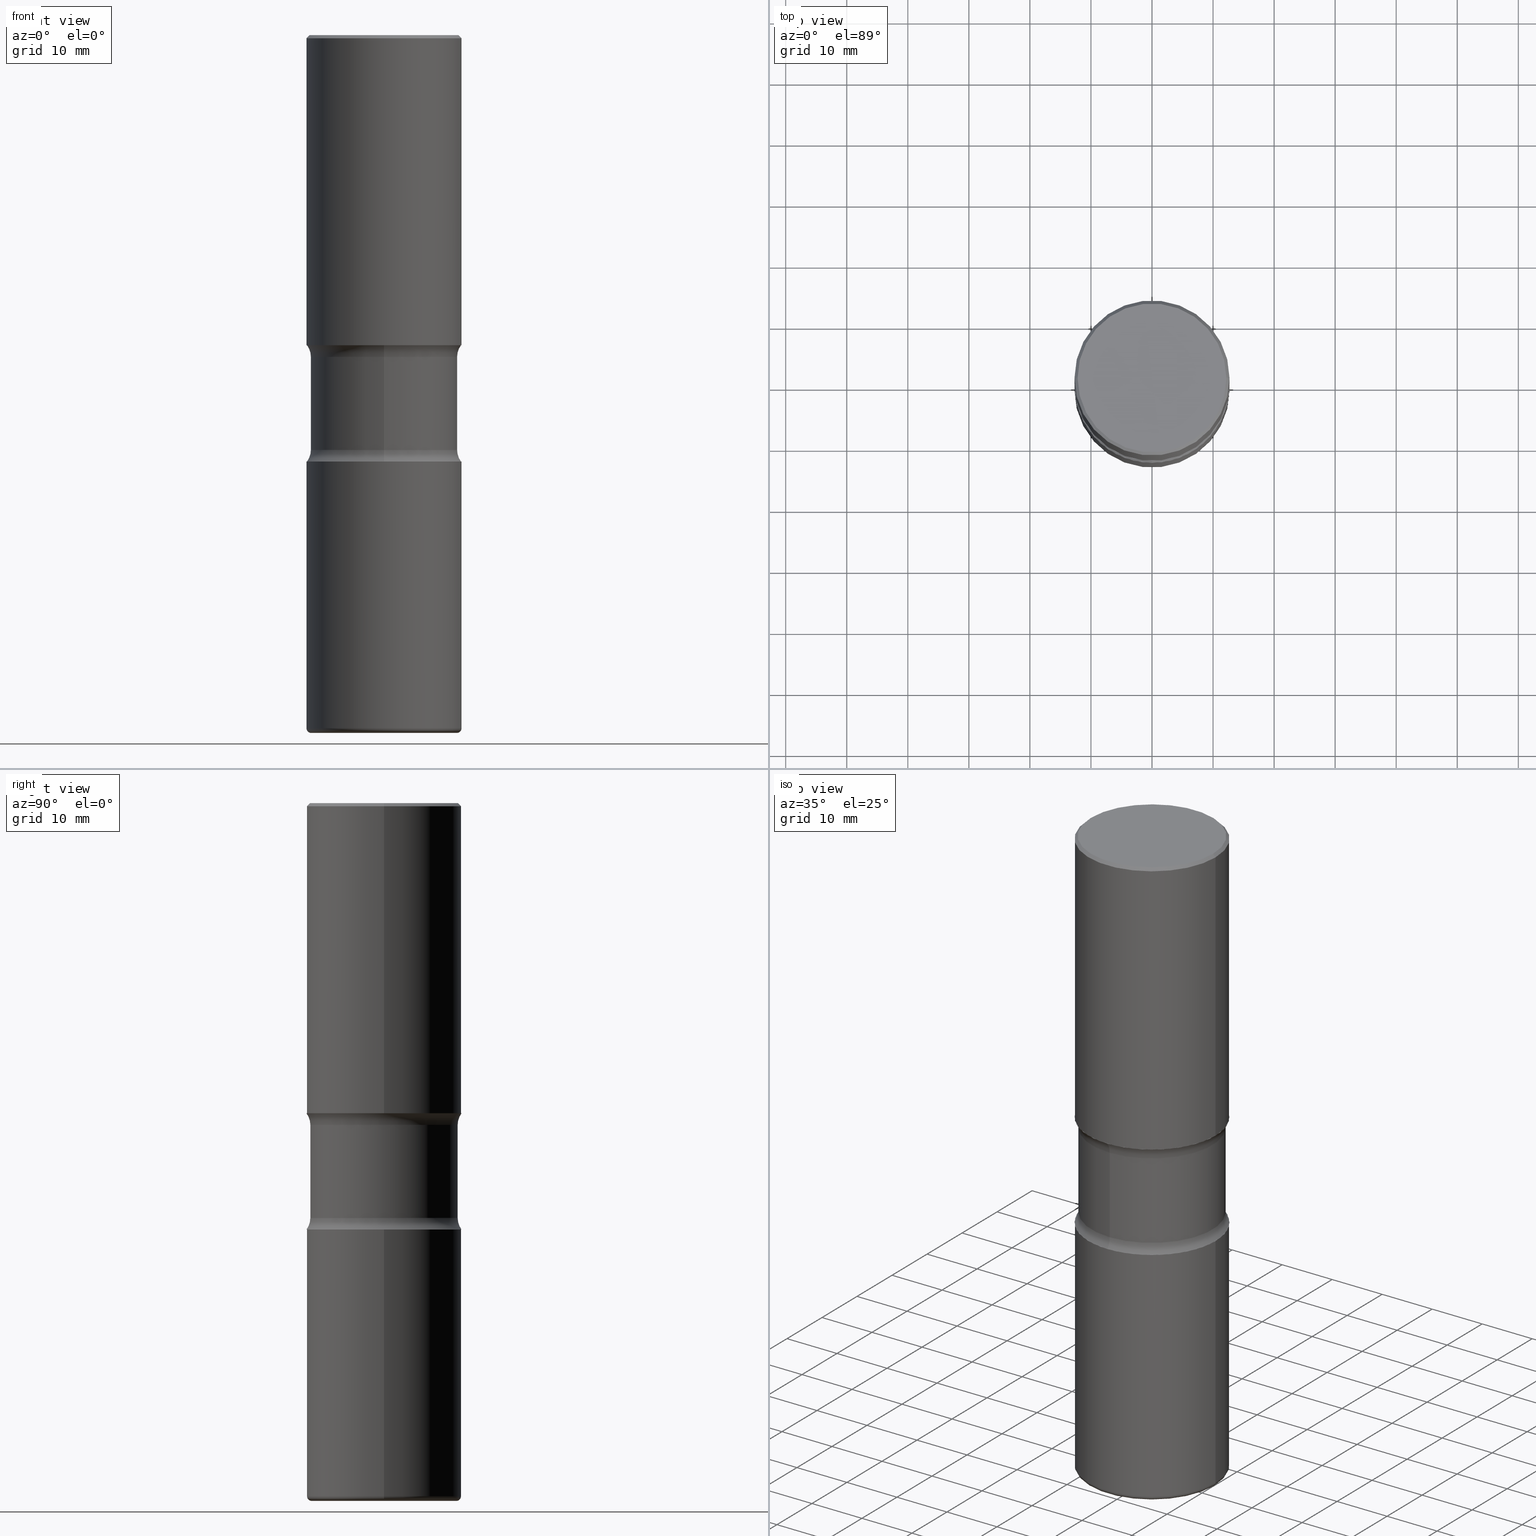
[diagram: canonical four-view strip — front | top / right | iso, engineering-drawing reading convention]
A machine part, canonical four-view strip (front | top / right | iso — engineering-drawing reading convention). The complete STEP part file that produces these views, byte-faithful:
ISO-10303-21;
HEADER;
FILE_DESCRIPTION (( 'STEP AP203' ),
    '1' );
FILE_NAME ('34124.STEP',
    '2024-03-01T23:08:43',
    ( '' ),
    ( '' ),
    'SwSTEP 2.0',
    'SolidWorks 2023',
    '' );
FILE_SCHEMA (( 'CONFIG_CONTROL_DESIGN' ));
ENDSEC;

DATA;
#1 = CARTESIAN_POINT ( 'NONE',  ( 1.093124556364756229E-28, -1.560692158462886353E-14, -4.470000000000000639 ) ) ;
#2 = ORIENTED_EDGE ( 'NONE', *, *, #221, .T. ) ;
#3 = AXIS2_PLACEMENT_3D ( 'NONE', #280, #151, #99 ) ;
#4 = VECTOR ( 'NONE', #373, 39.37007874015748143 ) ;
#5 = EDGE_CURVE ( 'NONE', #114, #259, #228, .T. ) ;
#6 = DIRECTION ( 'NONE',  ( 2.420803642536714607E-29, -3.526803257041618016E-15, -1.000000000000000000 ) ) ;
#7 = DIRECTION ( 'NONE',  ( 6.982962677686265133E-15, 1.000000000000000000, -3.450755360418016739E-15 ) ) ;
#8 = AXIS2_PLACEMENT_3D ( 'NONE', #91, #6, #7 ) ;
#9 = AXIS2_PLACEMENT_3D ( 'NONE', #166, #87, #336 ) ;
#10 = LOCAL_TIME ( 18, 8, 43.00000000000000000, #430 ) ;
#11 = FACE_OUTER_BOUND ( 'NONE', #424, .T. ) ;
#12 = DIRECTION ( 'NONE',  ( 1.000000000000000000, -6.982962677686267499E-15, 0.000000000000000000 ) ) ;
#13 = ADVANCED_FACE ( 'NONE', ( #38 ), #464, .F. ) ;
#14 = DIRECTION ( 'NONE',  ( 2.438088387897960049E-29, -3.491481338843145188E-15, -1.000000000000000000 ) ) ;
#15 = ADVANCED_FACE ( 'NONE', ( #208 ), #244, .F. ) ;
#16 = ORIENTED_EDGE ( 'NONE', *, *, #329, .T. ) ;
#17 = DIRECTION ( 'NONE',  ( -2.445468806185136597E-29, 3.491481338843145583E-15, 1.000000000000000000 ) ) ;
#18 = CIRCLE ( 'NONE', #26, 0.5000000000000002220 ) ;
#19 = DIRECTION ( 'NONE',  ( -2.445468806185136877E-29, 3.491481338843145188E-15, 1.000000000000000000 ) ) ;
#20 = CIRCLE ( 'NONE', #428, 0.4800000000000002043 ) ;
#21 = ORIENTED_EDGE ( 'NONE', *, *, #557, .F. ) ;
#22 = PERSON_AND_ORGANIZATION_ROLE ( 'classification_officer' ) ;
#23 = PERSON_AND_ORGANIZATION ( #315, #542 ) ;
#24 = LINE ( 'NONE', #144, #86 ) ;
#25 = DIRECTION ( 'NONE',  ( 1.000000000000000000, -6.982962677686266711E-15, 0.000000000000000000 ) ) ;
#26 = AXIS2_PLACEMENT_3D ( 'NONE', #212, #261, #216 ) ;
#27 = ADVANCED_FACE ( 'NONE', ( #383 ), #135, .T. ) ;
#28 = CYLINDRICAL_SURFACE ( 'NONE', #379, 0.5000000000000004441 ) ;
#29 = APPROVAL_ROLE ( '' ) ;
#30 =( CONVERSION_BASED_UNIT ( 'INCH', #207 ) LENGTH_UNIT ( ) NAMED_UNIT ( #309 ) );
#31 = CC_DESIGN_DATE_AND_TIME_ASSIGNMENT ( #487, #453, ( #397 ) ) ;
#32 = DIRECTION ( 'NONE',  ( -6.982962677686266711E-15, -1.000000000000000000, 3.491481338843145583E-15 ) ) ;
#33 = ORIENTED_EDGE ( 'NONE', *, *, #432, .F. ) ;
#34 = ORIENTED_EDGE ( 'NONE', *, *, #54, .F. ) ;
#35 = ORIENTED_EDGE ( 'NONE', *, *, #479, .F. ) ;
#36 =( LENGTH_UNIT ( ) NAMED_UNIT ( * ) SI_UNIT ( $, .METRE. ) );
#37 = EDGE_LOOP ( 'NONE', ( #33, #227, #384, #285 ) ) ;
#38 = FACE_OUTER_BOUND ( 'NONE', #387, .T. ) ;
#39 = TOROIDAL_SURFACE ( 'NONE', #541, 0.4700000000000004730, 0.02999999999999967970 ) ;
#40 = AXIS2_PLACEMENT_3D ( 'NONE', #202, #374, #330 ) ;
#41 = APPROVAL ( #241, 'UNSPECIFIED' ) ;
#42 = DIRECTION ( 'NONE',  ( -2.420803642536714327E-29, 3.526803257041618016E-15, 1.000000000000000000 ) ) ;
#43 = ORIENTED_EDGE ( 'NONE', *, *, #535, .F. ) ;
#44 = ORIENTED_EDGE ( 'NONE', *, *, #205, .T. ) ;
#45 = CYLINDRICAL_SURFACE ( 'NONE', #402, 0.5000000000000004441 ) ;
#46 = CARTESIAN_POINT ( 'NONE',  ( -4.116298798662852831E-15, -0.6000000000000094147, -2.674999999999998490 ) ) ;
#47 = EDGE_CURVE ( 'NONE', #524, #533, #466, .T. ) ;
#48 = AXIS2_PLACEMENT_3D ( 'NONE', #50, #303, #132 ) ;
#49 = FACE_OUTER_BOUND ( 'NONE', #59, .T. ) ;
#50 = CARTESIAN_POINT ( 'NONE',  ( 4.890937612370275996E-29, -6.982962677686295110E-15, -2.000000000000000888 ) ) ;
#51 = DIRECTION ( 'NONE',  ( 1.000000000000000000, -6.982962677686266711E-15, 4.876036955247127162E-29 ) ) ;
#52 = CIRCLE ( 'NONE', #512, 0.1250000000000002498 ) ;
#53 = CC_DESIGN_APPROVAL ( #372, ( #496 ) ) ;
#54 = EDGE_CURVE ( 'NONE', #545, #237, #81, .T. ) ;
#55 = DIRECTION ( 'NONE',  ( 1.000000000000000000, -6.860497997771530774E-15, 4.840366310883528109E-29 ) ) ;
#56 = CARTESIAN_POINT ( 'NONE',  ( 1.100460962783311469E-28, -1.571166602479415690E-14, -4.500000000000000000 ) ) ;
#57 = FACE_OUTER_BOUND ( 'NONE', #341, .T. ) ;
#58 = EDGE_CURVE ( 'NONE', #524, #403, #141, .T. ) ;
#59 = EDGE_LOOP ( 'NONE', ( #34, #294, #161, #556 ) ) ;
#60 = APPROVAL_STATUS ( 'not_yet_approved' ) ;
#61 = UNCERTAINTY_MEASURE_WITH_UNIT (LENGTH_MEASURE( 1.000000000000000082E-05 ), #30, 'distance_accuracy_value', 'NONE');
#62 = CARTESIAN_POINT ( 'NONE',  ( -0.5000000000000004441, 3.552713678800504085E-15, -2.459467545127455133E-29 ) ) ;
#63 = CIRCLE ( 'NONE', #252, 0.5000000000000004441 ) ;
#64 = DIRECTION ( 'NONE',  ( -2.445468806185136597E-29, 3.491481338843145583E-15, 1.000000000000000000 ) ) ;
#65 = PRODUCT_DEFINITION_FORMATION_WITH_SPECIFIED_SOURCE ( 'ANY', '', #92, .NOT_KNOWN. ) ;
#66 = AXIS2_PLACEMENT_3D ( 'NONE', #247, #32, #339 ) ;
#67 = EDGE_LOOP ( 'NONE', ( #365, #124 ) ) ;
#68 = MECHANICAL_CONTEXT ( 'NONE', #128, 'mechanical' ) ;
#69 = DIRECTION ( 'NONE',  ( 2.420803642536714607E-29, -3.526803257041618016E-15, -1.000000000000000000 ) ) ;
#70 = CARTESIAN_POINT ( 'NONE',  ( 6.725039217009130125E-29, -9.601573681818657748E-15, -2.750000000000002220 ) ) ;
#71 = DIRECTION ( 'NONE',  ( -2.445468806185136597E-29, 3.491481338843145583E-15, 1.000000000000000000 ) ) ;
#72 = ORIENTED_EDGE ( 'NONE', *, *, #338, .T. ) ;
#73 = PERSON_AND_ORGANIZATION ( #315, #542 ) ;
#74 = DIRECTION ( 'NONE',  ( -1.000000000000000000, 7.105427357601001859E-15, 0.000000000000000000 ) ) ;
#75 = CC_DESIGN_PERSON_AND_ORGANIZATION_ASSIGNMENT ( #409, #448, ( #397 ) ) ;
#76 = CIRCLE ( 'NONE', #434, 0.1250000000000002498 ) ;
#77 = AXIS2_PLACEMENT_3D ( 'NONE', #146, #14, #400 ) ;
#78 = EDGE_LOOP ( 'NONE', ( #486, #458, #443, #119 ) ) ;
#79 = SECURITY_CLASSIFICATION_LEVEL ( 'unclassified' ) ;
#80 =( NAMED_UNIT ( * ) PLANE_ANGLE_UNIT ( ) SI_UNIT ( $, .RADIAN. ) );
#81 = LINE ( 'NONE', #168, #4 ) ;
#82 = FACE_OUTER_BOUND ( 'NONE', #298, .T. ) ;
#83 = DIRECTION ( 'NONE',  ( -2.445468806185136597E-29, 3.491481338843145583E-15, 1.000000000000000000 ) ) ;
#84 = ADVANCED_FACE ( 'NONE', ( #85 ), #332, .T. ) ;
#85 = FACE_OUTER_BOUND ( 'NONE', #159, .T. ) ;
#86 = VECTOR ( 'NONE', #19, 39.37007874015748143 ) ;
#87 = DIRECTION ( 'NONE',  ( 2.420803642536714607E-29, -3.526803257041618016E-15, -1.000000000000000000 ) ) ;
#88 = ADVANCED_FACE ( 'NONE', ( #120 ), #28, .T. ) ;
#89 = CARTESIAN_POINT ( 'NONE',  ( 0.4700000000000004730, -1.899365848330670351E-14, -4.500000000000000000 ) ) ;
#90 = EDGE_CURVE ( 'NONE', #213, #112, #415, .T. ) ;
#91 = CARTESIAN_POINT ( 'NONE',  ( 1.096144559144837880E-28, -1.577347938164148721E-14, -4.500000000000000888 ) ) ;
#92 = PRODUCT ( '34124', '34124', '', ( #68 ) ) ;
#93 = CIRCLE ( 'NONE', #253, 0.4800000000000002043 ) ;
#94 = DIRECTION ( 'NONE',  ( 2.438088387897960049E-29, -3.491481338843145188E-15, -1.000000000000000000 ) ) ;
#95 = CARTESIAN_POINT ( 'NONE',  ( -3.131554243005659264E-46, 4.471029511141341874E-32, 1.280553747030123384E-17 ) ) ;
#96 = EDGE_CURVE ( 'NONE', #167, #237, #18, .T. ) ;
#97 = DIRECTION ( 'NONE',  ( 1.000000000000000000, -6.982962677686268288E-15, 0.000000000000000000 ) ) ;
#98 = DIRECTION ( 'NONE',  ( -6.982962677686265922E-15, -1.000000000000000000, 3.526803257041618016E-15 ) ) ;
#99 = DIRECTION ( 'NONE',  ( 6.982962677686265133E-15, 1.000000000000000000, -3.450755360418016739E-15 ) ) ;
#100 = VERTEX_POINT ( 'NONE', #468 ) ;
#101 = EDGE_CURVE ( 'NONE', #259, #552, #517, .T. ) ;
#102 = CARTESIAN_POINT ( 'NONE',  ( -0.5000000000000005551, -9.051533954423258130E-15, -2.750000000000002220 ) ) ;
#103 = PERSON_AND_ORGANIZATION_ROLE ( 'design_supplier' ) ;
#104 = ORIENTED_EDGE ( 'NONE', *, *, #350, .T. ) ;
#105 = CARTESIAN_POINT ( 'NONE',  ( -0.4700000000000004730, -1.226737072655638969E-14, -4.470000000000000639 ) ) ;
#106 = DIRECTION ( 'NONE',  ( 2.420803642536714607E-29, -3.526803257041618016E-15, -1.000000000000000000 ) ) ;
#107 = DIRECTION ( 'NONE',  ( -2.445468806185136597E-29, 3.491481338843145583E-15, 1.000000000000000000 ) ) ;
#108 = CIRCLE ( 'NONE', #40, 0.5000000000000004441 ) ;
#109 = ORIENTED_EDGE ( 'NONE', *, *, #113, .T. ) ;
#110 = APPROVAL_ROLE ( '' ) ;
#111 = PLANE ( 'NONE',  #77 ) ;
#112 = VERTEX_POINT ( 'NONE', #391 ) ;
#113 = EDGE_CURVE ( 'NONE', #494, #114, #262, .T. ) ;
#114 = VERTEX_POINT ( 'NONE', #89 ) ;
#115 = PERSON_AND_ORGANIZATION ( #315, #542 ) ;
#116 = AXIS2_PLACEMENT_3D ( 'NONE', #70, #497, #407 ) ;
#117 = APPROVAL_PERSON_ORGANIZATION ( #73, #41, #110 ) ;
#118 = ORIENTED_EDGE ( 'NONE', *, *, #441, .F. ) ;
#119 = ORIENTED_EDGE ( 'NONE', *, *, #392, .T. ) ;
#120 = FACE_OUTER_BOUND ( 'NONE', #358, .T. ) ;
#121 = PERSON_AND_ORGANIZATION ( #315, #542 ) ;
#122 = ORIENTED_EDGE ( 'NONE', *, *, #205, .F. ) ;
#123 = CALENDAR_DATE ( 2024, 1, 3 ) ;
#124 = ORIENTED_EDGE ( 'NONE', *, *, #338, .F. ) ;
#125 = EDGE_LOOP ( 'NONE', ( #152, #210, #16, #35 ) ) ;
#126 = AXIS2_PLACEMENT_3D ( 'NONE', #194, #316, #236 ) ;
#127 = ORIENTED_EDGE ( 'NONE', *, *, #535, .T. ) ;
#128 = APPLICATION_CONTEXT ( 'configuration controlled 3d designs of mechanical parts and assemblies' ) ;
#129 = LINE ( 'NONE', #160, #279 ) ;
#130 = DIRECTION ( 'NONE',  ( -2.445468806185136597E-29, 3.491481338843145583E-15, 1.000000000000000000 ) ) ;
#131 = ADVANCED_FACE ( 'NONE', ( #214 ), #478, .F. ) ;
#132 = DIRECTION ( 'NONE',  ( 1.000000000000000000, -6.982962677686265922E-15, 4.876176775795935793E-29 ) ) ;
#133 = FACE_OUTER_BOUND ( 'NONE', #37, .T. ) ;
#134 = LOCAL_TIME ( 18, 8, 43.00000000000000000, #537 ) ;
#135 = TOROIDAL_SURFACE ( 'NONE', #175, 0.4700000000000004730, 0.02999999999999967970 ) ;
#136 = DIRECTION ( 'NONE',  ( -1.000000000000000000, 6.982962677686267499E-15, 0.000000000000000000 ) ) ;
#137 = ADVANCED_FACE ( 'NONE', ( #133 ), #433, .T. ) ;
#138 = DIRECTION ( 'NONE',  ( 1.000000000000000000, -6.982962677686265133E-15, 4.883557194083112340E-29 ) ) ;
#139 = DIRECTION ( 'NONE',  ( 1.000000000000000000, -6.982962677686268288E-15, 0.000000000000000000 ) ) ;
#140 = ORIENTED_EDGE ( 'NONE', *, *, #310, .F. ) ;
#141 = CIRCLE ( 'NONE', #9, 0.4749999999999999778 ) ;
#142 = ADVANCED_FACE ( 'NONE', ( #260 ), #436, .F. ) ;
#143 = AXIS2_PLACEMENT_3D ( 'NONE', #282, #234, #398 ) ;
#144 = CARTESIAN_POINT ( 'NONE',  ( -0.5000000000000004441, 3.552713678800504085E-15, -2.459467545127455133E-29 ) ) ;
#145 = ORIENTED_EDGE ( 'NONE', *, *, #293, .T. ) ;
#146 = CARTESIAN_POINT ( 'NONE',  ( 1.831046210561297832E-28, -5.249269453314009692E-15, -4.500000000000000888 ) ) ;
#147 = PLANE ( 'NONE',  #312 ) ;
#148 = EDGE_LOOP ( 'NONE', ( #506, #72, #289, #377 ) ) ;
#149 = PERSON_AND_ORGANIZATION_ROLE ( 'creator' ) ;
#150 = CARTESIAN_POINT ( 'NONE',  ( 4.909436485106592418E-29, -6.956471239037440390E-15, -2.000000000000000888 ) ) ;
#151 = DIRECTION ( 'NONE',  ( 2.420803642536714607E-29, -3.526803257041618016E-15, -1.000000000000000000 ) ) ;
#152 = ORIENTED_EDGE ( 'NONE', *, *, #510, .F. ) ;
#153 = DATE_AND_TIME ( #532, #134 ) ;
#154 = LINE ( 'NONE', #526, #405 ) ;
#155 = TOROIDAL_SURFACE ( 'NONE', #493, 0.5999999999999999778, 0.1250000000000001943 ) ;
#156 = CC_DESIGN_APPROVAL ( #158, ( #65 ) ) ;
#157 = FACE_OUTER_BOUND ( 'NONE', #420, .T. ) ;
#158 = APPROVAL ( #60, 'UNSPECIFIED' ) ;
#159 = EDGE_LOOP ( 'NONE', ( #200, #461, #447, #559 ) ) ;
#160 = CARTESIAN_POINT ( 'NONE',  ( -3.258736548941367209E-15, -0.4750000000000157430, -4.499999999999999112 ) ) ;
#161 = ORIENTED_EDGE ( 'NONE', *, *, #479, .T. ) ;
#162 = ORIENTED_EDGE ( 'NONE', *, *, #245, .T. ) ;
#163 = APPLICATION_PROTOCOL_DEFINITION ( 'international standard', 'config_control_design', 1994, #128 ) ;
#164 =( GEOMETRIC_REPRESENTATION_CONTEXT ( 3 ) GLOBAL_UNCERTAINTY_ASSIGNED_CONTEXT ( ( #61 ) ) GLOBAL_UNIT_ASSIGNED_CONTEXT ( ( #30, #80, #242 ) ) REPRESENTATION_CONTEXT ( 'NONE', 'WORKASPACE' ) );
#165 = CARTESIAN_POINT ( 'NONE',  ( 3.316907271901085550E-15, 0.4749999999999842126, -4.500000000000002665 ) ) ;
#166 = CARTESIAN_POINT ( 'NONE',  ( 5.090996758296847983E-29, -7.220981483315563230E-15, -2.075000000000001954 ) ) ;
#167 = VERTEX_POINT ( 'NONE', #474 ) ;
#168 = CARTESIAN_POINT ( 'NONE',  ( 0.5000000000000002220, -3.500078625662630657E-15, -0.02000000000000006981 ) ) ;
#169 = ORIENTED_EDGE ( 'NONE', *, *, #386, .F. ) ;
#170 = ORIENTED_EDGE ( 'NONE', *, *, #344, .F. ) ;
#171 = DIRECTION ( 'NONE',  ( -2.445468806185136597E-29, 3.491481338843145583E-15, 1.000000000000000000 ) ) ;
#172 = DATE_AND_TIME ( #123, #10 ) ;
#173 = AXIS2_PLACEMENT_3D ( 'NONE', #308, #394, #346 ) ;
#174 = EDGE_CURVE ( 'NONE', #403, #524, #229, .T. ) ;
#175 = AXIS2_PLACEMENT_3D ( 'NONE', #507, #83, #549 ) ;
#176 = CARTESIAN_POINT ( 'NONE',  ( 6.543478943818874561E-29, -9.337063437540531752E-15, -2.675000000000000711 ) ) ;
#177 = CARTESIAN_POINT ( 'NONE',  ( 5.090996758296847983E-29, -7.220981483315563230E-15, -2.075000000000001954 ) ) ;
#178 = CC_DESIGN_PERSON_AND_ORGANIZATION_ASSIGNMENT ( #272, #22, ( #496 ) ) ;
#179 = FACE_OUTER_BOUND ( 'NONE', #125, .T. ) ;
#180 = CIRCLE ( 'NONE', #278, 0.5000000000000004441 ) ;
#181 = AXIS2_PLACEMENT_3D ( 'NONE', #423, #554, #416 ) ;
#182 = CARTESIAN_POINT ( 'NONE',  ( 1.093124556364756229E-28, -1.560692158462886353E-14, -4.470000000000000639 ) ) ;
#183 = DIRECTION ( 'NONE',  ( 6.982962677686265133E-15, 1.000000000000000000, -3.450755360418016739E-15 ) ) ;
#184 = ORIENTED_EDGE ( 'NONE', *, *, #174, .F. ) ;
#185 = CARTESIAN_POINT ( 'NONE',  ( 0.000000000000000000, 0.000000000000000000, 0.000000000000000000 ) ) ;
#186 = ADVANCED_FACE ( 'NONE', ( #49 ), #460, .T. ) ;
#187 = FACE_OUTER_BOUND ( 'NONE', #78, .T. ) ;
#188 = ORIENTED_EDGE ( 'NONE', *, *, #211, .T. ) ;
#189 = AXIS2_PLACEMENT_3D ( 'NONE', #501, #504, #290 ) ;
#190 = LINE ( 'NONE', #62, #305 ) ;
#191 = AXIS2_PLACEMENT_3D ( 'NONE', #150, #69, #410 ) ;
#192 = DIRECTION ( 'NONE',  ( -2.445468806185136597E-29, 3.491481338843145583E-15, 1.000000000000000000 ) ) ;
#193 = COORDINATED_UNIVERSAL_TIME_OFFSET ( 5, 0, .BEHIND. ) ;
#194 = CARTESIAN_POINT ( 'NONE',  ( 6.725039217009130125E-29, -9.601573681818657748E-15, -2.750000000000002220 ) ) ;
#195 = ORIENTED_EDGE ( 'NONE', *, *, #257, .T. ) ;
#196 = ADVANCED_FACE ( 'NONE', ( #179 ), #427, .T. ) ;
#197 = DIRECTION ( 'NONE',  ( 6.982962677686265133E-15, 1.000000000000000000, -3.278217592397113101E-15 ) ) ;
#198 = CIRCLE ( 'NONE', #267, 0.4700000000000004730 ) ;
#199 = LOCAL_TIME ( 18, 8, 43.00000000000000000, #193 ) ;
#200 = ORIENTED_EDGE ( 'NONE', *, *, #58, .T. ) ;
#201 = APPROVAL_DATE_TIME ( #153, #158 ) ;
#202 = CARTESIAN_POINT ( 'NONE',  ( 6.725039217009130125E-29, -9.601573681818657748E-15, -2.750000000000002220 ) ) ;
#203 = CARTESIAN_POINT ( 'NONE',  ( 6.541629056545242414E-29, -9.339712581405418013E-15, -2.675000000000000711 ) ) ;
#204 = SHAPE_DEFINITION_REPRESENTATION ( #457, #371 ) ;
#205 = EDGE_CURVE ( 'NONE', #213, #462, #76, .T. ) ;
#206 = DIRECTION ( 'NONE',  ( 2.420803642536714607E-29, -3.526803257041618016E-15, -1.000000000000000000 ) ) ;
#207 = LENGTH_MEASURE_WITH_UNIT ( LENGTH_MEASURE( 0.02539999999999999897 ), #36 );
#208 = FACE_OUTER_BOUND ( 'NONE', #364, .T. ) ;
#209 = EDGE_LOOP ( 'NONE', ( #188, #352 ) ) ;
#210 = ORIENTED_EDGE ( 'NONE', *, *, #54, .T. ) ;
#211 = EDGE_CURVE ( 'NONE', #538, #545, #93, .T. ) ;
#212 = CARTESIAN_POINT ( 'NONE',  ( 4.890937612370289799E-31, -6.982962677686315028E-17, -0.02000000000000006981 ) ) ;
#213 = VERTEX_POINT ( 'NONE', #219 ) ;
#214 = FACE_OUTER_BOUND ( 'NONE', #67, .T. ) ;
#215 = AXIS2_PLACEMENT_3D ( 'NONE', #223, #55, #540 ) ;
#216 = DIRECTION ( 'NONE',  ( 1.000000000000000000, -6.982962677686267499E-15, 0.000000000000000000 ) ) ;
#217 = ADVANCED_FACE ( 'NONE', ( #11 ), #39, .T. ) ;
#218 = DIRECTION ( 'NONE',  ( -1.000000000000000000, 6.982962677686267499E-15, 0.000000000000000000 ) ) ;
#219 = CARTESIAN_POINT ( 'NONE',  ( -3.430248998885702278E-15, -0.5000000000000102141, -2.750000000000000444 ) ) ;
#220 = AXIS2_PLACEMENT_3D ( 'NONE', #438, #389, #218 ) ;
#221 = EDGE_CURVE ( 'NONE', #259, #240, #63, .T. ) ;
#222 = CARTESIAN_POINT ( 'NONE',  ( 1.093124556364756229E-28, -1.560692158462886353E-14, -4.470000000000000639 ) ) ;
#223 = CARTESIAN_POINT ( 'NONE',  ( -4.116298798662867819E-15, -0.6000000000000073053, -2.074999999999999734 ) ) ;
#224 = ADVANCED_FACE ( 'NONE', ( #431 ), #45, .T. ) ;
#225 = VERTEX_POINT ( 'NONE', #299 ) ;
#226 = CARTESIAN_POINT ( 'NONE',  ( 0.5000000000000002220, -3.500078625662630657E-15, -0.02000000000000006981 ) ) ;
#227 = ORIENTED_EDGE ( 'NONE', *, *, #174, .T. ) ;
#228 = CIRCLE ( 'NONE', #66, 0.02999999999999967970 ) ;
#229 = CIRCLE ( 'NONE', #342, 0.4749999999999999778 ) ;
#230 = AXIS2_PLACEMENT_3D ( 'NONE', #440, #42, #98 ) ;
#231 = CARTESIAN_POINT ( 'NONE',  ( -3.344492773913572412E-15, -0.4750000000000072498, -2.075000000000000178 ) ) ;
#232 = DIRECTION ( 'NONE',  ( -6.982962677686264344E-15, -1.000000000000000000, 0.000000000000000000 ) ) ;
#233 = ORIENTED_EDGE ( 'NONE', *, *, #310, .T. ) ;
#234 = DIRECTION ( 'NONE',  ( 0.000000000000000000, 0.000000000000000000, 1.000000000000000000 ) ) ;
#235 = EDGE_CURVE ( 'NONE', #462, #533, #304, .T. ) ;
#236 = DIRECTION ( 'NONE',  ( 1.000000000000000000, -6.982962677686268288E-15, 0.000000000000000000 ) ) ;
#237 = VERTEX_POINT ( 'NONE', #226 ) ;
#238 = COORDINATED_UNIVERSAL_TIME_OFFSET ( 5, 0, .BEHIND. ) ;
#239 = FACE_OUTER_BOUND ( 'NONE', #327, .T. ) ;
#240 = VERTEX_POINT ( 'NONE', #481 ) ;
#241 = APPROVAL_STATUS ( 'not_yet_approved' ) ;
#242 =( NAMED_UNIT ( * ) SI_UNIT ( $, .STERADIAN. ) SOLID_ANGLE_UNIT ( ) );
#243 = AXIS2_PLACEMENT_3D ( 'NONE', #363, #271, #395 ) ;
#244 = TOROIDAL_SURFACE ( 'NONE', #381, 0.5999999999999999778, 0.1250000000000001943 ) ;
#245 = EDGE_CURVE ( 'NONE', #533, #462, #348, .T. ) ;
#246 = ADVANCED_FACE ( 'NONE', ( #187 ), #323, .F. ) ;
#247 = CARTESIAN_POINT ( 'NONE',  ( 0.4700000000000004730, -1.888891404314141330E-14, -4.470000000000000639 ) ) ;
#248 = DIRECTION ( 'NONE',  ( 2.420803642536714327E-29, -3.526803257041618016E-15, -1.000000000000000000 ) ) ;
#249 = APPROVAL_STATUS ( 'not_yet_approved' ) ;
#250 = CARTESIAN_POINT ( 'NONE',  ( 0.4800000000000002043, -3.396558832296483677E-15, 1.280553747032483033E-17 ) ) ;
#251 = ORIENTED_EDGE ( 'NONE', *, *, #557, .T. ) ;
#252 = AXIS2_PLACEMENT_3D ( 'NONE', #182, #171, #97 ) ;
#253 = AXIS2_PLACEMENT_3D ( 'NONE', #95, #349, #51 ) ;
#254 = AXIS2_PLACEMENT_3D ( 'NONE', #455, #273, #25 ) ;
#255 = DIRECTION ( 'NONE',  ( 1.000000000000000000, -6.982962677686266711E-15, 4.876176775795935232E-29 ) ) ;
#256 = DATE_AND_TIME ( #490, #199 ) ;
#257 = EDGE_CURVE ( 'NONE', #240, #259, #180, .T. ) ;
#258 = ADVANCED_FACE ( 'NONE', ( #531 ), #147, .F. ) ;
#259 = VERTEX_POINT ( 'NONE', #269 ) ;
#260 = FACE_OUTER_BOUND ( 'NONE', #370, .T. ) ;
#261 = DIRECTION ( 'NONE',  ( -2.445468806185136597E-29, 3.491481338843145583E-15, 1.000000000000000000 ) ) ;
#262 = CIRCLE ( 'NONE', #334, 0.4700000000000004730 ) ;
#263 = AXIS2_PLACEMENT_3D ( 'NONE', #105, #419, #74 ) ;
#264 = DIRECTION ( 'NONE',  ( 2.420803642536714607E-29, -3.526803257041618016E-15, -1.000000000000000000 ) ) ;
#265 = DIRECTION ( 'NONE',  ( -1.000000000000000000, 6.982962677686265922E-15, -4.876176775795935793E-29 ) ) ;
#266 = PLANE ( 'NONE',  #230 ) ;
#267 = AXIS2_PLACEMENT_3D ( 'NONE', #56, #107, #139 ) ;
#268 = EDGE_CURVE ( 'NONE', #292, #237, #274, .T. ) ;
#269 = CARTESIAN_POINT ( 'NONE',  ( 0.5000000000000002220, -1.909840292347200004E-14, -4.470000000000000639 ) ) ;
#270 = ORIENTED_EDGE ( 'NONE', *, *, #350, .F. ) ;
#271 = DIRECTION ( 'NONE',  ( -1.000000000000000000, 6.982962677686265922E-15, -4.883557194083112340E-29 ) ) ;
#272 = PERSON_AND_ORGANIZATION ( #315, #542 ) ;
#273 = DIRECTION ( 'NONE',  ( -2.445468806185136597E-29, 3.491481338843145583E-15, 1.000000000000000000 ) ) ;
#274 = LINE ( 'NONE', #442, #480 ) ;
#275 = ADVANCED_FACE ( 'NONE', ( #57 ), #155, .F. ) ;
#276 = ORIENTED_EDGE ( 'NONE', *, *, #525, .T. ) ;
#277 = APPROVAL_DATE_TIME ( #543, #41 ) ;
#278 = AXIS2_PLACEMENT_3D ( 'NONE', #222, #351, #528 ) ;
#279 = VECTOR ( 'NONE', #362, 39.37007874015748143 ) ;
#280 = CARTESIAN_POINT ( 'NONE',  ( 6.543478943818874561E-29, -9.337063437540531752E-15, -2.675000000000000711 ) ) ;
#281 = ORIENTED_EDGE ( 'NONE', *, *, #90, .F. ) ;
#282 = CARTESIAN_POINT ( 'NONE',  ( 0.000000000000000000, 0.000000000000000000, 0.000000000000000000 ) ) ;
#283 = ORIENTED_EDGE ( 'NONE', *, *, #293, .F. ) ;
#284 = PERSON_AND_ORGANIZATION ( #315, #542 ) ;
#285 = ORIENTED_EDGE ( 'NONE', *, *, #235, .F. ) ;
#286 = AXIS2_PLACEMENT_3D ( 'NONE', #470, #94, #265 ) ;
#287 = CIRCLE ( 'NONE', #254, 0.5000000000000004441 ) ;
#288 = CLOSED_SHELL ( 'NONE', ( #546, #196, #186, #258, #131, #224 ) ) ;
#289 = ORIENTED_EDGE ( 'NONE', *, *, #268, .T. ) ;
#290 = DIRECTION ( 'NONE',  ( 6.982962677686265133E-15, 1.000000000000000000, -3.450755360418016739E-15 ) ) ;
#291 = ORIENTED_EDGE ( 'NONE', *, *, #441, .T. ) ;
#292 = VERTEX_POINT ( 'NONE', #319 ) ;
#293 = EDGE_CURVE ( 'NONE', #240, #322, #24, .T. ) ;
#294 = ORIENTED_EDGE ( 'NONE', *, *, #211, .F. ) ;
#295 = ORIENTED_EDGE ( 'NONE', *, *, #268, .F. ) ;
#296 = CIRCLE ( 'NONE', #393, 0.5000000000000002220 ) ;
#297 = AXIS2_PLACEMENT_3D ( 'NONE', #411, #396, #197 ) ;
#298 = EDGE_LOOP ( 'NONE', ( #469, #276, #509, #295 ) ) ;
#299 = CARTESIAN_POINT ( 'NONE',  ( -0.5000000000000005551, 2.631752656892707803E-17, -2.000000000000000888 ) ) ;
#300 = APPROVAL_ROLE ( '' ) ;
#301 = CC_DESIGN_PERSON_AND_ORGANIZATION_ASSIGNMENT ( #284, #149, ( #65 ) ) ;
#302 = CARTESIAN_POINT ( 'NONE',  ( 0.5000000000000004441, -3.491481338843136511E-15, 2.438088387897969858E-29 ) ) ;
#303 = DIRECTION ( 'NONE',  ( -2.438088387897960049E-29, 3.491481338843145188E-15, 1.000000000000000000 ) ) ;
#304 = CIRCLE ( 'NONE', #472, 0.4749999999999999778 ) ;
#305 = VECTOR ( 'NONE', #488, 39.37007874015748143 ) ;
#306 = DIRECTION ( 'NONE',  ( 1.000000000000000000, -6.860497997771530774E-15, 4.840366310883528109E-29 ) ) ;
#307 = APPLICATION_CONTEXT ( 'configuration controlled 3d designs of mechanical parts and assemblies' ) ;
#308 = CARTESIAN_POINT ( 'NONE',  ( 6.725039217009130125E-29, -9.601573681818657748E-15, -2.750000000000002220 ) ) ;
#309 = DIMENSIONAL_EXPONENTS ( 1.000000000000000000, 0.000000000000000000, 0.000000000000000000, 0.000000000000000000, 0.000000000000000000, 0.000000000000000000, 0.000000000000000000 ) ;
#310 = EDGE_CURVE ( 'NONE', #552, #322, #369, .T. ) ;
#311 = DIRECTION ( 'NONE',  ( 2.420803642536714607E-29, -3.526803257041618016E-15, -1.000000000000000000 ) ) ;
#312 = AXIS2_PLACEMENT_3D ( 'NONE', #489, #523, #536 ) ;
#313 = ORIENTED_EDGE ( 'NONE', *, *, #90, .T. ) ;
#314 = DIRECTION ( 'NONE',  ( -0.7071067811865471286, 2.468850131082252722E-15, -0.7071067811865479058 ) ) ;
#315 = PERSON ( 'UNSPECIFIED', 'UNSPECIFIED', 'UNSPECIFIED', ('UNSPECIFIED'), ('UNSPECIFIED'), ('UNSPECIFIED') ) ;
#316 = DIRECTION ( 'NONE',  ( -2.445468806185136597E-29, 3.491481338843145583E-15, 1.000000000000000000 ) ) ;
#317 = CARTESIAN_POINT ( 'NONE',  ( -0.4700000000000004730, -1.221316153627502204E-14, -4.500000000000000000 ) ) ;
#318 = EDGE_CURVE ( 'NONE', #524, #100, #527, .T. ) ;
#319 = CARTESIAN_POINT ( 'NONE',  ( 0.5000000000000004441, -1.047444401652943162E-14, -2.000000000000000888 ) ) ;
#320 = CARTESIAN_POINT ( 'NONE',  ( 3.316907271901041374E-15, 0.4749999999999906519, -2.675000000000002487 ) ) ;
#321 = DIRECTION ( 'NONE',  ( 1.000000000000000000, -6.982962677686266711E-15, 0.000000000000000000 ) ) ;
#322 = VERTEX_POINT ( 'NONE', #102 ) ;
#323 = TOROIDAL_SURFACE ( 'NONE', #518, 0.5999999999999999778, 0.1250000000000000555 ) ;
#324 = CC_DESIGN_SECURITY_CLASSIFICATION ( #496, ( #65 ) ) ;
#325 = DIRECTION ( 'NONE',  ( -1.000000000000000000, 6.982962677686265922E-15, -4.883557194083112340E-29 ) ) ;
#326 = MANIFOLD_SOLID_BREP ( 'Body-Move/Copy2[2]', #288 ) ;
#327 = EDGE_LOOP ( 'NONE', ( #184, #417, #291, #368 ) ) ;
#328 = PERSON_AND_ORGANIZATION_ROLE ( 'design_owner' ) ;
#329 = EDGE_CURVE ( 'NONE', #237, #167, #296, .T. ) ;
#330 = DIRECTION ( 'NONE',  ( 1.000000000000000000, -6.982962677686268288E-15, 0.000000000000000000 ) ) ;
#331 = MANIFOLD_SOLID_BREP ( 'Body-Move/Copy2[4]', #359 ) ;
#332 = CYLINDRICAL_SURFACE ( 'NONE', #189, 0.4749999999999999778 ) ;
#333 = CARTESIAN_POINT ( 'NONE',  ( -0.4800000000000002043, 3.386736898677840775E-15, 1.280553747027767124E-17 ) ) ;
#334 = AXIS2_PLACEMENT_3D ( 'NONE', #515, #520, #390 ) ;
#335 = LOCAL_TIME ( 18, 8, 43.00000000000000000, #414 ) ;
#336 = DIRECTION ( 'NONE',  ( 6.982962677686265133E-15, 1.000000000000000000, -3.450755360418016739E-15 ) ) ;
#337 = DATE_TIME_ROLE ( 'classification_date' ) ;
#338 = EDGE_CURVE ( 'NONE', #225, #292, #465, .T. ) ;
#339 = DIRECTION ( 'NONE',  ( 1.000000000000000000, -6.982962677686213068E-15, 0.000000000000000000 ) ) ;
#340 = ORIENTED_EDGE ( 'NONE', *, *, #344, .T. ) ;
#341 = EDGE_LOOP ( 'NONE', ( #122, #169, #340, #162 ) ) ;
#342 = AXIS2_PLACEMENT_3D ( 'NONE', #177, #264, #347 ) ;
#343 = CARTESIAN_POINT ( 'NONE',  ( 0.000000000000000000, 0.000000000000000000, 0.000000000000000000 ) ) ;
#344 = EDGE_CURVE ( 'NONE', #112, #533, #52, .T. ) ;
#345 = DIRECTION ( 'NONE',  ( 1.000000000000000000, -6.982962677686266711E-15, 4.876176775795935232E-29 ) ) ;
#346 = DIRECTION ( 'NONE',  ( 6.982962677686266711E-15, 1.000000000000000000, -3.278217592397113101E-15 ) ) ;
#347 = DIRECTION ( 'NONE',  ( 6.982962677686265133E-15, 1.000000000000000000, -3.450755360418016739E-15 ) ) ;
#348 = CIRCLE ( 'NONE', #3, 0.4749999999999999778 ) ;
#349 = DIRECTION ( 'NONE',  ( -2.445468806185136597E-29, 3.491481338843145583E-15, 1.000000000000000000 ) ) ;
#350 = EDGE_CURVE ( 'NONE', #114, #494, #198, .T. ) ;
#351 = DIRECTION ( 'NONE',  ( -2.445468806185136597E-29, 3.491481338843145583E-15, 1.000000000000000000 ) ) ;
#352 = ORIENTED_EDGE ( 'NONE', *, *, #510, .T. ) ;
#353 = CYLINDRICAL_SURFACE ( 'NONE', #449, 0.5000000000000004441 ) ;
#354 = DIRECTION ( 'NONE',  ( 6.982962677686265133E-15, 1.000000000000000000, -3.526803257041617622E-15 ) ) ;
#355 = CIRCLE ( 'NONE', #116, 0.5000000000000004441 ) ;
#356 = CALENDAR_DATE ( 2024, 1, 3 ) ;
#357 = CC_DESIGN_APPROVAL ( #41, ( #397 ) ) ;
#358 = EDGE_LOOP ( 'NONE', ( #283, #195, #426, #21 ) ) ;
#359 = CLOSED_SHELL ( 'NONE', ( #84, #15, #516, #246, #13, #399, #275, #137 ) ) ;
#360 = DIRECTION ( 'NONE',  ( 2.420803642536714607E-29, -3.526803257041618016E-15, -1.000000000000000000 ) ) ;
#361 = DIRECTION ( 'NONE',  ( 2.420803642536714607E-29, -3.526803257041618016E-15, -1.000000000000000000 ) ) ;
#362 = DIRECTION ( 'NONE',  ( 2.420803642536714607E-29, -3.526803257041618016E-15, -1.000000000000000000 ) ) ;
#363 = CARTESIAN_POINT ( 'NONE',  ( 4.189777606611810513E-15, 0.5999999999999927613, -2.075000000000004174 ) ) ;
#364 = EDGE_LOOP ( 'NONE', ( #281, #44, #499, #170 ) ) ;
#365 = ORIENTED_EDGE ( 'NONE', *, *, #500, .F. ) ;
#366 = FACE_OUTER_BOUND ( 'NONE', #498, .T. ) ;
#367 = DIRECTION ( 'NONE',  ( 6.982962677686265133E-15, 1.000000000000000000, -3.526803257041617622E-15 ) ) ;
#368 = ORIENTED_EDGE ( 'NONE', *, *, #318, .F. ) ;
#369 = CIRCLE ( 'NONE', #126, 0.5000000000000004441 ) ;
#370 = EDGE_LOOP ( 'NONE', ( #233, #251 ) ) ;
#371 = ADVANCED_BREP_SHAPE_REPRESENTATION ( '34124', ( #521, #326, #331, #143 ), #164 ) ;
#372 = APPROVAL ( #249, 'UNSPECIFIED' ) ;
#373 = DIRECTION ( 'NONE',  ( 0.7071067811865471286, -7.319954787623254468E-15, -0.7071067811865479058 ) ) ;
#374 = DIRECTION ( 'NONE',  ( -2.445468806185136597E-29, 3.491481338843145583E-15, 1.000000000000000000 ) ) ;
#375 = EDGE_LOOP ( 'NONE', ( #2, #145, #140, #555 ) ) ;
#376 = CYLINDRICAL_SURFACE ( 'NONE', #181, 0.5000000000000004441 ) ;
#377 = ORIENTED_EDGE ( 'NONE', *, *, #96, .F. ) ;
#378 = DIRECTION ( 'NONE',  ( 6.982962677686265133E-15, 1.000000000000000000, -3.526803257041617622E-15 ) ) ;
#379 = AXIS2_PLACEMENT_3D ( 'NONE', #382, #463, #255 ) ;
#380 = EDGE_CURVE ( 'NONE', #403, #418, #388, .T. ) ;
#381 = AXIS2_PLACEMENT_3D ( 'NONE', #203, #206, #378 ) ;
#382 = CARTESIAN_POINT ( 'NONE',  ( 0.000000000000000000, 0.000000000000000000, 0.000000000000000000 ) ) ;
#383 = FACE_OUTER_BOUND ( 'NONE', #508, .T. ) ;
#384 = ORIENTED_EDGE ( 'NONE', *, *, #47, .T. ) ;
#385 = CARTESIAN_POINT ( 'NONE',  ( 4.890937612370289799E-31, -6.982962677686315028E-17, -0.02000000000000006981 ) ) ;
#386 = EDGE_CURVE ( 'NONE', #112, #213, #355, .T. ) ;
#387 = EDGE_LOOP ( 'NONE', ( #548, #118 ) ) ;
#388 = CIRCLE ( 'NONE', #215, 0.1250000000000000278 ) ;
#389 = DIRECTION ( 'NONE',  ( 2.445468806185136597E-29, -3.491481338843145583E-15, -1.000000000000000000 ) ) ;
#390 = DIRECTION ( 'NONE',  ( 1.000000000000000000, -6.982962677686268288E-15, 0.000000000000000000 ) ) ;
#391 = CARTESIAN_POINT ( 'NONE',  ( 3.491481338843205142E-15, 0.4999999999999909517, -2.750000000000003553 ) ) ;
#392 = EDGE_CURVE ( 'NONE', #100, #418, #529, .T. ) ;
#393 = AXIS2_PLACEMENT_3D ( 'NONE', #444, #192, #12 ) ;
#394 = DIRECTION ( 'NONE',  ( 2.420803642536714607E-29, -3.526803257041618016E-15, -1.000000000000000000 ) ) ;
#395 = DIRECTION ( 'NONE',  ( -6.982962677686269077E-15, -1.000000000000000000, 0.000000000000000000 ) ) ;
#396 = DIRECTION ( 'NONE',  ( 2.420803642536714607E-29, -3.526803257041618016E-15, -1.000000000000000000 ) ) ;
#397 = PRODUCT_DEFINITION ( 'UNKNOWN', '', #65, #406 ) ;
#398 = DIRECTION ( 'NONE',  ( 1.000000000000000000, 0.000000000000000000, 0.000000000000000000 ) ) ;
#399 = ADVANCED_FACE ( 'NONE', ( #157 ), #266, .F. ) ;
#400 = DIRECTION ( 'NONE',  ( -1.000000000000000000, 6.982962677686265922E-15, -4.876176775795935793E-29 ) ) ;
#401 = DIRECTION ( 'NONE',  ( -2.445468806185136877E-29, 3.491481338843145188E-15, 1.000000000000000000 ) ) ;
#402 = AXIS2_PLACEMENT_3D ( 'NONE', #343, #130, #345 ) ;
#403 = VERTEX_POINT ( 'NONE', #231 ) ;
#404 = CALENDAR_DATE ( 2024, 1, 3 ) ;
#405 = VECTOR ( 'NONE', #314, 39.37007874015748143 ) ;
#406 = DESIGN_CONTEXT ( 'detailed design', #307, 'design' ) ;
#407 = DIRECTION ( 'NONE',  ( 6.982962677686266711E-15, 1.000000000000000000, -3.278217592397113101E-15 ) ) ;
#408 = ORIENTED_EDGE ( 'NONE', *, *, #113, .F. ) ;
#409 = PERSON_AND_ORGANIZATION ( #315, #542 ) ;
#410 = DIRECTION ( 'NONE',  ( 6.982962677686265133E-15, 1.000000000000000000, -3.278217592397113101E-15 ) ) ;
#411 = CARTESIAN_POINT ( 'NONE',  ( 4.909436485106592418E-29, -6.956471239037440390E-15, -2.000000000000000888 ) ) ;
#412 = CARTESIAN_POINT ( 'NONE',  ( 5.074347772834163147E-29, -7.244823778099533267E-15, -2.075000000000001954 ) ) ;
#413 = CC_DESIGN_DATE_AND_TIME_ASSIGNMENT ( #256, #337, ( #496 ) ) ;
#414 = COORDINATED_UNIVERSAL_TIME_OFFSET ( 5, 0, .BEHIND. ) ;
#415 = CIRCLE ( 'NONE', #173, 0.5000000000000004441 ) ;
#416 = DIRECTION ( 'NONE',  ( 1.000000000000000000, -6.982962677686266711E-15, 4.876176775795935232E-29 ) ) ;
#417 = ORIENTED_EDGE ( 'NONE', *, *, #380, .T. ) ;
#418 = VERTEX_POINT ( 'NONE', #477 ) ;
#419 = DIRECTION ( 'NONE',  ( 7.105427357601001859E-15, 1.000000000000000000, -3.491481338843145583E-15 ) ) ;
#420 = EDGE_LOOP ( 'NONE', ( #452, #313 ) ) ;
#421 = ORIENTED_EDGE ( 'NONE', *, *, #257, .F. ) ;
#422 = PRODUCT_RELATED_PRODUCT_CATEGORY ( 'detail', '', ( #92 ) ) ;
#423 = CARTESIAN_POINT ( 'NONE',  ( 0.000000000000000000, 0.000000000000000000, 0.000000000000000000 ) ) ;
#424 = EDGE_LOOP ( 'NONE', ( #43, #109, #560, #421 ) ) ;
#425 = CARTESIAN_POINT ( 'NONE',  ( 4.890937612370275996E-29, -6.982962677686295110E-15, -2.000000000000000888 ) ) ;
#426 = ORIENTED_EDGE ( 'NONE', *, *, #101, .T. ) ;
#427 = CONICAL_SURFACE ( 'NONE', #551, 0.5000000000000002220, 0.7853981633974477239 ) ;
#428 = AXIS2_PLACEMENT_3D ( 'NONE', #445, #71, #483 ) ;
#429 = DIRECTION ( 'NONE',  ( 6.982962677686265922E-15, 1.000000000000000000, -3.526803257041618016E-15 ) ) ;
#430 = COORDINATED_UNIVERSAL_TIME_OFFSET ( 5, 0, .BEHIND. ) ;
#431 = FACE_OUTER_BOUND ( 'NONE', #148, .T. ) ;
#432 = EDGE_CURVE ( 'NONE', #403, #462, #129, .T. ) ;
#433 = CYLINDRICAL_SURFACE ( 'NONE', #8, 0.4749999999999999778 ) ;
#434 = AXIS2_PLACEMENT_3D ( 'NONE', #46, #306, #476 ) ;
#435 = CIRCLE ( 'NONE', #191, 0.5000000000000004441 ) ;
#436 = PLANE ( 'NONE',  #286 ) ;
#437 = DIRECTION ( 'NONE',  ( -2.445468806185136877E-29, 3.491481338843145188E-15, 1.000000000000000000 ) ) ;
#438 = CARTESIAN_POINT ( 'NONE',  ( 4.890937612370289799E-31, -6.982962677686315028E-17, -0.02000000000000006981 ) ) ;
#439 = AXIS2_PLACEMENT_3D ( 'NONE', #446, #64, #321 ) ;
#440 = CARTESIAN_POINT ( 'NONE',  ( 4.626636033113468420E-29, -1.260660647484934709E-14, -2.750000000000002220 ) ) ;
#441 = EDGE_CURVE ( 'NONE', #418, #100, #435, .T. ) ;
#442 = CARTESIAN_POINT ( 'NONE',  ( 0.5000000000000004441, -3.491481338843136511E-15, 2.438088387897969858E-29 ) ) ;
#443 = ORIENTED_EDGE ( 'NONE', *, *, #318, .T. ) ;
#444 = CARTESIAN_POINT ( 'NONE',  ( 4.890937612370289799E-31, -6.982962677686315028E-17, -0.02000000000000006981 ) ) ;
#445 = CARTESIAN_POINT ( 'NONE',  ( -3.131554243005659264E-46, 4.471029511141341874E-32, 1.280553747030123384E-17 ) ) ;
#446 = CARTESIAN_POINT ( 'NONE',  ( 4.890937612370275996E-29, -6.982962677686295110E-15, -2.000000000000000888 ) ) ;
#447 = ORIENTED_EDGE ( 'NONE', *, *, #245, .F. ) ;
#448 = PERSON_AND_ORGANIZATION_ROLE ( 'creator' ) ;
#449 = AXIS2_PLACEMENT_3D ( 'NONE', #185, #17, #539 ) ;
#450 = FACE_OUTER_BOUND ( 'NONE', #375, .T. ) ;
#451 = CARTESIAN_POINT ( 'NONE',  ( 5.074347772834163147E-29, -7.244823778099533267E-15, -2.075000000000001954 ) ) ;
#452 = ORIENTED_EDGE ( 'NONE', *, *, #386, .T. ) ;
#453 = DATE_TIME_ROLE ( 'creation_date' ) ;
#454 = ADVANCED_FACE ( 'NONE', ( #366 ), #111, .T. ) ;
#455 = CARTESIAN_POINT ( 'NONE',  ( 4.890937612370275996E-29, -6.982962677686295110E-15, -2.000000000000000888 ) ) ;
#456 = ORIENTED_EDGE ( 'NONE', *, *, #5, .F. ) ;
#457 = PRODUCT_DEFINITION_SHAPE ( 'NONE', 'NONE',  #397 ) ;
#458 = ORIENTED_EDGE ( 'NONE', *, *, #58, .F. ) ;
#459 = PERSON_AND_ORGANIZATION ( #315, #542 ) ;
#460 = CONICAL_SURFACE ( 'NONE', #220, 0.5000000000000002220, 0.7853981633974477239 ) ;
#461 = ORIENTED_EDGE ( 'NONE', *, *, #432, .T. ) ;
#462 = VERTEX_POINT ( 'NONE', #534 ) ;
#463 = DIRECTION ( 'NONE',  ( -2.445468806185136597E-29, 3.491481338843145583E-15, 1.000000000000000000 ) ) ;
#464 = PLANE ( 'NONE',  #492 ) ;
#465 = CIRCLE ( 'NONE', #439, 0.5000000000000004441 ) ;
#466 = LINE ( 'NONE', #165, #550 ) ;
#467 = CC_DESIGN_PERSON_AND_ORGANIZATION_ASSIGNMENT ( #115, #328, ( #92 ) ) ;
#468 = CARTESIAN_POINT ( 'NONE',  ( 3.491481338843185420E-15, 0.4999999999999934497, -2.000000000000002665 ) ) ;
#469 = ORIENTED_EDGE ( 'NONE', *, *, #500, .T. ) ;
#470 = CARTESIAN_POINT ( 'NONE',  ( 4.626636033113468420E-29, -1.260660647484934709E-14, -2.750000000000002220 ) ) ;
#471 = CLOSED_SHELL ( 'NONE', ( #475, #27, #454, #217, #88, #142 ) ) ;
#472 = AXIS2_PLACEMENT_3D ( 'NONE', #176, #311, #183 ) ;
#473 = APPROVAL_PERSON_ORGANIZATION ( #23, #158, #29 ) ;
#474 = CARTESIAN_POINT ( 'NONE',  ( -0.5000000000000002220, 3.421651712066272029E-15, -0.02000000000000006981 ) ) ;
#475 = ADVANCED_FACE ( 'NONE', ( #450 ), #353, .T. ) ;
#476 = DIRECTION ( 'NONE',  ( 6.860497997771528407E-15, 1.000000000000000000, 0.000000000000000000 ) ) ;
#477 = CARTESIAN_POINT ( 'NONE',  ( -3.430248998885719238E-15, -0.5000000000000073275, -1.999999999999999334 ) ) ;
#478 = PLANE ( 'NONE',  #48 ) ;
#479 = EDGE_CURVE ( 'NONE', #538, #167, #154, .T. ) ;
#480 = VECTOR ( 'NONE', #401, 39.37007874015748143 ) ;
#481 = CARTESIAN_POINT ( 'NONE',  ( -0.5000000000000002220, -1.205420790582835944E-14, -4.470000000000000639 ) ) ;
#482 = CIRCLE ( 'NONE', #263, 0.02999999999999967970 ) ;
#483 = DIRECTION ( 'NONE',  ( 1.000000000000000000, -6.982962677686266711E-15, 4.876036955247127162E-29 ) ) ;
#484 = CC_DESIGN_PERSON_AND_ORGANIZATION_ASSIGNMENT ( #459, #103, ( #65 ) ) ;
#485 = CARTESIAN_POINT ( 'NONE',  ( 6.541629056545242414E-29, -9.339712581405418013E-15, -2.675000000000000711 ) ) ;
#486 = ORIENTED_EDGE ( 'NONE', *, *, #380, .F. ) ;
#487 = DATE_AND_TIME ( #356, #503 ) ;
#488 = DIRECTION ( 'NONE',  ( -2.445468806185136877E-29, 3.491481338843145188E-15, 1.000000000000000000 ) ) ;
#489 = CARTESIAN_POINT ( 'NONE',  ( 3.351822085289409125E-15, 0.4800000000000002043, -1.669508273909560036E-15 ) ) ;
#490 = CALENDAR_DATE ( 2024, 1, 3 ) ;
#491 = CARTESIAN_POINT ( 'NONE',  ( 4.189777606611825502E-15, 0.5999999999999906519, -2.675000000000002931 ) ) ;
#492 = AXIS2_PLACEMENT_3D ( 'NONE', #425, #248, #429 ) ;
#493 = AXIS2_PLACEMENT_3D ( 'NONE', #485, #106, #367 ) ;
#494 = VERTEX_POINT ( 'NONE', #317 ) ;
#495 = APPLICATION_PROTOCOL_DEFINITION ( 'international standard', 'config_control_design', 1994, #307 ) ;
#496 = SECURITY_CLASSIFICATION ( '', '', #79 ) ;
#497 = DIRECTION ( 'NONE',  ( 2.420803642536714607E-29, -3.526803257041618016E-15, -1.000000000000000000 ) ) ;
#498 = EDGE_LOOP ( 'NONE', ( #270, #408 ) ) ;
#499 = ORIENTED_EDGE ( 'NONE', *, *, #235, .T. ) ;
#500 = EDGE_CURVE ( 'NONE', #292, #225, #287, .T. ) ;
#501 = CARTESIAN_POINT ( 'NONE',  ( 1.096144559144837880E-28, -1.577347938164148721E-14, -4.500000000000000888 ) ) ;
#502 = VECTOR ( 'NONE', #437, 39.37007874015748143 ) ;
#503 = LOCAL_TIME ( 18, 8, 43.00000000000000000, #238 ) ;
#504 = DIRECTION ( 'NONE',  ( 2.420803642536714607E-29, -3.526803257041618016E-15, -1.000000000000000000 ) ) ;
#505 = APPROVAL_DATE_TIME ( #172, #372 ) ;
#506 = ORIENTED_EDGE ( 'NONE', *, *, #525, .F. ) ;
#507 = CARTESIAN_POINT ( 'NONE',  ( 1.093124556364756229E-28, -1.560692158462886353E-14, -4.470000000000000639 ) ) ;
#508 = EDGE_LOOP ( 'NONE', ( #104, #127, #511, #456 ) ) ;
#509 = ORIENTED_EDGE ( 'NONE', *, *, #329, .F. ) ;
#510 = EDGE_CURVE ( 'NONE', #545, #538, #20, .T. ) ;
#511 = ORIENTED_EDGE ( 'NONE', *, *, #221, .F. ) ;
#512 = AXIS2_PLACEMENT_3D ( 'NONE', #491, #325, #232 ) ;
#513 = AXIS2_PLACEMENT_3D ( 'NONE', #412, #360, #530 ) ;
#514 = DIRECTION ( 'NONE',  ( 2.445468806185136597E-29, -3.491481338843145583E-15, -1.000000000000000000 ) ) ;
#515 = CARTESIAN_POINT ( 'NONE',  ( 1.100460962783311469E-28, -1.571166602479415690E-14, -4.500000000000000000 ) ) ;
#516 = ADVANCED_FACE ( 'NONE', ( #239 ), #553, .F. ) ;
#517 = LINE ( 'NONE', #302, #502 ) ;
#518 = AXIS2_PLACEMENT_3D ( 'NONE', #451, #361, #354 ) ;
#519 = APPROVAL_PERSON_ORGANIZATION ( #121, #372, #300 ) ;
#520 = DIRECTION ( 'NONE',  ( -2.445468806185136597E-29, 3.491481338843145583E-15, 1.000000000000000000 ) ) ;
#521 = MANIFOLD_SOLID_BREP ( 'Body-Move/Copy2[1]', #471 ) ;
#522 = DIRECTION ( 'NONE',  ( -2.445468806185136597E-29, 3.491481338843145583E-15, 1.000000000000000000 ) ) ;
#523 = DIRECTION ( 'NONE',  ( 2.438088387897960049E-29, -3.491481338843145188E-15, -1.000000000000000000 ) ) ;
#524 = VERTEX_POINT ( 'NONE', #544 ) ;
#525 = EDGE_CURVE ( 'NONE', #225, #167, #190, .T. ) ;
#526 = CARTESIAN_POINT ( 'NONE',  ( -0.5000000000000002220, 3.421651712066272029E-15, -0.02000000000000006981 ) ) ;
#527 = CIRCLE ( 'NONE', #243, 0.1250000000000000278 ) ;
#528 = DIRECTION ( 'NONE',  ( 1.000000000000000000, -6.982962677686268288E-15, 0.000000000000000000 ) ) ;
#529 = CIRCLE ( 'NONE', #297, 0.5000000000000004441 ) ;
#530 = DIRECTION ( 'NONE',  ( 6.982962677686265133E-15, 1.000000000000000000, -3.526803257041617622E-15 ) ) ;
#531 = FACE_OUTER_BOUND ( 'NONE', #209, .T. ) ;
#532 = CALENDAR_DATE ( 2024, 1, 3 ) ;
#533 = VERTEX_POINT ( 'NONE', #320 ) ;
#534 = CARTESIAN_POINT ( 'NONE',  ( -3.344492773913557423E-15, -0.4750000000000094147, -2.674999999999999378 ) ) ;
#535 = EDGE_CURVE ( 'NONE', #494, #240, #482, .T. ) ;
#536 = DIRECTION ( 'NONE',  ( -1.000000000000000000, 6.982962677686265922E-15, -4.876176775795935793E-29 ) ) ;
#537 = COORDINATED_UNIVERSAL_TIME_OFFSET ( 5, 0, .BEHIND. ) ;
#538 = VERTEX_POINT ( 'NONE', #333 ) ;
#539 = DIRECTION ( 'NONE',  ( 1.000000000000000000, -6.982962677686266711E-15, 4.876176775795935232E-29 ) ) ;
#540 = DIRECTION ( 'NONE',  ( 6.860497997771532351E-15, 1.000000000000000000, 0.000000000000000000 ) ) ;
#541 = AXIS2_PLACEMENT_3D ( 'NONE', #1, #522, #138 ) ;
#542 = ORGANIZATION ( 'UNSPECIFIED', 'UNSPECIFIED', '' ) ;
#543 = DATE_AND_TIME ( #404, #335 ) ;
#544 = CARTESIAN_POINT ( 'NONE',  ( 3.316907271901027175E-15, 0.4749999999999927613, -2.075000000000003286 ) ) ;
#545 = VERTEX_POINT ( 'NONE', #250 ) ;
#546 = ADVANCED_FACE ( 'NONE', ( #82 ), #376, .T. ) ;
#547 = CARTESIAN_POINT ( 'NONE',  ( 0.5000000000000004441, -1.309305502066179584E-14, -2.750000000000002220 ) ) ;
#548 = ORIENTED_EDGE ( 'NONE', *, *, #392, .F. ) ;
#549 = DIRECTION ( 'NONE',  ( 1.000000000000000000, -6.982962677686265133E-15, 4.883557194083112340E-29 ) ) ;
#550 = VECTOR ( 'NONE', #558, 39.37007874015748143 ) ;
#551 = AXIS2_PLACEMENT_3D ( 'NONE', #385, #514, #136 ) ;
#552 = VERTEX_POINT ( 'NONE', #547 ) ;
#553 = TOROIDAL_SURFACE ( 'NONE', #513, 0.5999999999999999778, 0.1250000000000000555 ) ;
#554 = DIRECTION ( 'NONE',  ( -2.445468806185136597E-29, 3.491481338843145583E-15, 1.000000000000000000 ) ) ;
#555 = ORIENTED_EDGE ( 'NONE', *, *, #101, .F. ) ;
#556 = ORIENTED_EDGE ( 'NONE', *, *, #96, .T. ) ;
#557 = EDGE_CURVE ( 'NONE', #322, #552, #108, .T. ) ;
#558 = DIRECTION ( 'NONE',  ( 2.420803642536714607E-29, -3.526803257041618016E-15, -1.000000000000000000 ) ) ;
#559 = ORIENTED_EDGE ( 'NONE', *, *, #47, .F. ) ;
#560 = ORIENTED_EDGE ( 'NONE', *, *, #5, .T. ) ;
ENDSEC;
END-ISO-10303-21;
